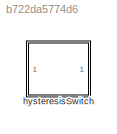
MODEL slx_b722da5774d6
KIND library
CONFIG AbsTol = auto
CONFIG EnableMultiTasking = off
CONFIG FixedStep = auto
CONFIG MaxStep = auto
CONFIG MinStep = auto
CONFIG RelTol = 1e-3
CONFIG SampleTimeConstraint = Unconstrained
CONFIG Solver = VariableStepAuto
CONFIG SolverName = VariableStepAuto
CONFIG StartTime = 0.0
CONFIG StopTime = 10.0
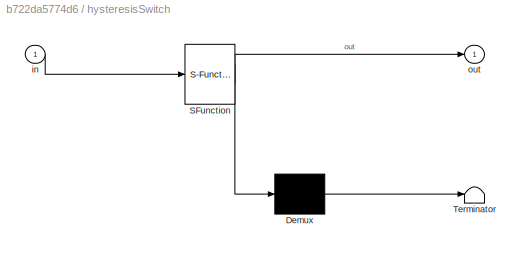
BLOCK [SubSystem] hysteresisSwitch
  ErrorFcn = Stateflow.Translate.translate
  PermitHierarchicalResolution = ExplicitOnly
  Ports = [1, 1]
  RequestExecContextInheritance = off
  SFBlockType = Chart
  TreatAsAtomicUnit = on
BLOCK [Demux] hysteresisSwitch/ Demux 
  Outputs = 1
  Ports = [1, 1]
BLOCK [S-Function] hysteresisSwitch/ SFunction 
  EnableBusSupport = off
  FunctionName = sf_sfun
  Parameters = lowerLim,upperLim
  PortCounts = [1 2]
  Ports = [1, 2]
  SFcnIsStateOwnerBlock = off
  SFunctionDeploymentMode = off
  Tag = Stateflow S-Function hysteresisSwitch_ul 3
BLOCK [Terminator] hysteresisSwitch/ Terminator 
BLOCK [Inport] hysteresisSwitch/in
  IconDisplay = Port number
BLOCK [Outport] hysteresisSwitch/out
  IconDisplay = Port number
CHART hysteresisSwitch states=2 transitions=3
  STATE_LABEL 'ON'
  STATE_LABEL 'OFF'
